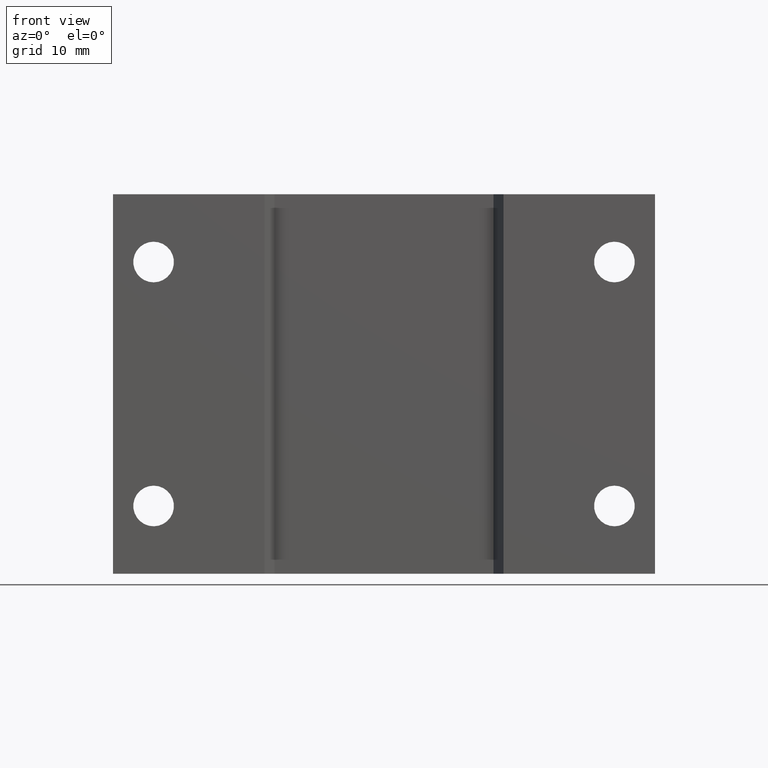
[diagram: clean part render]
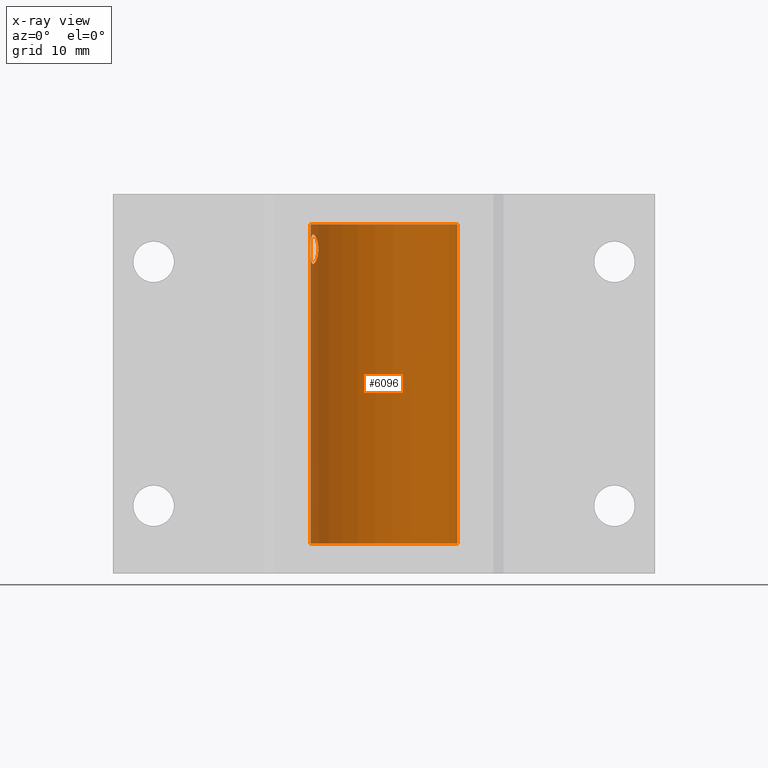
[diagram: x-ray — body ghosted, one internal face saturated and labeled with its STEP entity id]
A machine part, front view, then the same camera in x-ray: the body is ghosted and one INTERNAL B-rep face — a face not visible from any outside direction — is saturated and labeled: STEP entity #6096.
In plain terms, the highlighted cylindrical surface (partial cylindrical patch) has radius 8.5979 mm, axis along (0, 0, -1).
Its self-contained STEP definition (entity closure, byte-faithful):
#90 = DIRECTION ( 'NONE',  ( 0.0000000000000000000, 0.0000000000000000000, -1.000000000000000000 ) ) ;
#118 = CARTESIAN_POINT ( 'NONE',  ( -0.3137966897994204363, -0.1269951249576621033, 0.5671607904430762126 ) ) ;
#158 = CARTESIAN_POINT ( 'NONE',  ( -0.3364748359922478116, -0.03710723243584293507, 0.5763310618168289157 ) ) ;
#339 = VECTOR ( 'NONE', #2376, 39.37007874015748143 ) ;
#374 = EDGE_CURVE ( 'NONE', #7695, #2202, #5979, .T. ) ;
#473 = B_SPLINE_CURVE_WITH_KNOTS ( 'NONE', 3,
 ( #2965, #9072, #8410, #2092, #10689, #5460, #4910, #2053, #7339, #8225, #8107, #3886, #8959, #3776, #10723, #8992, #3816, #10221, #1531, #1590, #10189, #10143, #5036, #7634, #2422, #3252, #2461, #9349 ),
 .UNSPECIFIED., .F., .F.,
 ( 4, 2, 2, 2, 2, 2, 2, 2, 2, 2, 2, 2, 2, 4 ),
 ( 0.0000000000000000000, 0.0003383620096335648712, 0.0006767240192671297424, 0.001015086028900694668, 0.001353448038534260135, 0.002030172057801382397, 0.002706896077068505092, 0.003045258086702066005, 0.003383620096335626486, 0.004060344115602743977, 0.004398706125236307059, 0.004737068134869869274, 0.005075430144503431489, 0.005413792154136993703 ),
 .UNSPECIFIED. ) ;
#587 = FACE_BOUND ( 'NONE', #8984, .T. ) ;
#987 = CARTESIAN_POINT ( 'NONE',  ( -0.3065452609481252866, -0.1436114366438842327, 0.5869464853366791468 ) ) ;
#1054 = CARTESIAN_POINT ( 'NONE',  ( -0.3027005929963763609, -0.1515077588760460614, 0.6212499999999999689 ) ) ;
#1278 = EDGE_CURVE ( 'NONE', #5759, #10516, #473, .T. ) ;
#1479 = ORIENTED_EDGE ( 'NONE', *, *, #374, .T. ) ;
#1531 = CARTESIAN_POINT ( 'NONE',  ( -0.3353363106905219437, -0.04661081344128548132, 0.6756485984646100063 ) ) ;
#1537 = AXIS2_PLACEMENT_3D ( 'NONE', #4288, #90, #6821 ) ;
#1590 = CARTESIAN_POINT ( 'NONE',  ( -0.3364756343767419944, -0.03710238900753182884, 0.6661670416662422989 ) ) ;
#1762 = CARTESIAN_POINT ( 'NONE',  ( -0.3372402150381619279, -0.02928459069803467790, 0.5871465125087985681 ) ) ;
#1797 = CARTESIAN_POINT ( 'NONE',  ( -0.3379002124070352164, -0.02014190793545803798, 0.6212499999999999689 ) ) ;
#1836 = CARTESIAN_POINT ( 'NONE',  ( -0.3036989005335642977, -0.1494992614507808237, 0.6035249457237853443 ) ) ;
#1918 = CIRCLE ( 'NONE', #1537, 0.3385000000000000231 ) ;
#2053 = CARTESIAN_POINT ( 'NONE',  ( -0.3087838090485210407, -0.1387121954973241922, 0.6627299716739766255 ) ) ;
#2066 = EDGE_CURVE ( 'NONE', #10516, #5759, #5290, .T. ) ;
#2092 = CARTESIAN_POINT ( 'NONE',  ( -0.3036896729983820098, -0.1495179427329263733, 0.6388900416892567824 ) ) ;
#2202 = VERTEX_POINT ( 'NONE', #11008 ) ;
#2376 = DIRECTION ( 'NONE',  ( 0.0000000000000000000, 0.0000000000000000000, -1.000000000000000000 ) ) ;
#2422 = CARTESIAN_POINT ( 'NONE',  ( -0.3377608989095670644, -0.02237451853778570782, 0.6389488098115457815 ) ) ;
#2461 = CARTESIAN_POINT ( 'NONE',  ( -0.3379002124070352719, -0.02014190793545807615, 0.6256942211962093214 ) ) ;
#2506 = VERTEX_POINT ( 'NONE', #6568 ) ;
#2623 = CARTESIAN_POINT ( 'NONE',  ( -0.3258129125056840047, -0.09191490690731833613, 0.5532477950630013686 ) ) ;
#2897 = CARTESIAN_POINT ( 'NONE',  ( -0.3379002124070352164, -0.02014190793545803798, 0.6212499999999999689 ) ) ;
#2965 = CARTESIAN_POINT ( 'NONE',  ( -0.3027005929963763609, -0.1515077588760460614, 0.6212499999999999689 ) ) ;
#3252 = CARTESIAN_POINT ( 'NONE',  ( -0.3378740083573442132, -0.02059607701815713982, 0.6302081799949238450 ) ) ;
#3442 = ORIENTED_EDGE ( 'NONE', *, *, #8412, .T. ) ;
#3484 = CARTESIAN_POINT ( 'NONE',  ( -0.3206275007248339803, -0.1086150360222212369, 0.5567295541968679817 ) ) ;
#3561 = CARTESIAN_POINT ( 'NONE',  ( -0.3178892724342091691, -0.1163856981867225776, 0.5601342626191524454 ) ) ;
#3649 = CYLINDRICAL_SURFACE ( 'NONE', #5956, 0.3385000000000000231 ) ;
#3776 = CARTESIAN_POINT ( 'NONE',  ( -0.3281104645743143644, -0.08334001282994327187, 0.6892517245130401760 ) ) ;
#3816 = CARTESIAN_POINT ( 'NONE',  ( -0.3319765317750834055, -0.06626416613863760074, 0.6857760416970534179 ) ) ;
#3886 = CARTESIAN_POINT ( 'NONE',  ( -0.3219752465255824037, -0.1047925757905295019, 0.6874499927164300361 ) ) ;
#3887 = LINE ( 'NONE', #6718, #7799 ) ;
#4159 = VERTEX_POINT ( 'NONE', #5697 ) ;
#4288 = CARTESIAN_POINT ( 'NONE',  ( 0.0000000000000000000, 0.0000000000000000000, -0.7362499999999998490 ) ) ;
#4315 = CARTESIAN_POINT ( 'NONE',  ( 0.0000000000000000000, 0.0000000000000000000, 0.7562499999999998668 ) ) ;
#4346 = CARTESIAN_POINT ( 'NONE',  ( -0.3378039641092739909, -0.02196947009785536406, 0.6033954614804527550 ) ) ;
#4377 = AXIS2_PLACEMENT_3D ( 'NONE', #8456, #11035, #5809 ) ;
#4380 = CARTESIAN_POINT ( 'NONE',  ( -0.3335082724369632934, -0.05806550986053238272, 0.5601763274785988012 ) ) ;
#4417 = CARTESIAN_POINT ( 'NONE',  ( -0.3029039356018448093, -0.1511034650712489158, 0.6123004593758938352 ) ) ;
#4910 = CARTESIAN_POINT ( 'NONE',  ( -0.3066989588144170553, -0.1432629141555968044, 0.6553465142392117526 ) ) ;
#4926 = CARTESIAN_POINT ( 'NONE',  ( 0.3385000000000000231, 4.145429415113791288E-17, 0.7362499999999998490 ) ) ;
#5022 = CIRCLE ( 'NONE', #4377, 0.3385000000000000231 ) ;
#5036 = CARTESIAN_POINT ( 'NONE',  ( -0.3374142289130331873, -0.02714583467731317146, 0.6514077828415072435 ) ) ;
#5176 = CARTESIAN_POINT ( 'NONE',  ( -0.3352586744924127005, -0.04687840435284601481, 0.5671934318726566948 ) ) ;
#5218 = CARTESIAN_POINT ( 'NONE',  ( -0.3374150679482298965, -0.02713491049499654195, 0.5911167812355400120 ) ) ;
#5290 = B_SPLINE_CURVE_WITH_KNOTS ( 'NONE', 3,
 ( #1797, #9569, #4346, #5218, #1762, #5293, #158, #8755, #5176, #7889, #4380, #7809, #10525, #2623, #8683, #10489, #3484, #3561, #10442, #118, #6094, #6131, #987, #6995, #1836, #4417, #8870, #1054 ),
 .UNSPECIFIED., .F., .F.,
 ( 4, 2, 2, 2, 2, 2, 2, 2, 2, 2, 2, 2, 2, 4 ),
 ( 0.005413792154136993703, 0.006090340484572278647, 0.006428614649789924154, 0.006766888815007568794, 0.007105162980225214302, 0.007443437145442859809, 0.008119985475878150824, 0.008458259641095795464, 0.008796533806313440104, 0.009134807971531084744, 0.009473082136748727650, 0.01014963046718402040, 0.01048790463240166851, 0.01082617879761931488 ),
 .UNSPECIFIED. ) ;
#5293 = CARTESIAN_POINT ( 'NONE',  ( -0.3367688699009869779, -0.03428233009801519987, 0.5797462047998209744 ) ) ;
#5432 = ORIENTED_EDGE ( 'NONE', *, *, #2066, .T. ) ;
#5460 = CARTESIAN_POINT ( 'NONE',  ( -0.3057895645510586013, -0.1451827005275945770, 0.6514451150173206084 ) ) ;
#5697 = CARTESIAN_POINT ( 'NONE',  ( -0.3385000000000000231, 0.0000000000000000000, 0.7362499999999998490 ) ) ;
#5759 = VERTEX_POINT ( 'NONE', #7996 ) ;
#5809 = DIRECTION ( 'NONE',  ( -1.000000000000000000, 0.0000000000000000000, 0.0000000000000000000 ) ) ;
#5956 = AXIS2_PLACEMENT_3D ( 'NONE', #4315, #8648, #6958 ) ;
#5979 = LINE ( 'NONE', #7559, #339 ) ;
#6094 = CARTESIAN_POINT ( 'NONE',  ( -0.3124593268015614655, -0.1302359261106149080, 0.5700145399666206592 ) ) ;
#6096 = ADVANCED_FACE ( 'NONE', ( #587, #10435 ), #3649, .F. ) ;
#6131 = CARTESIAN_POINT ( 'NONE',  ( -0.3087321589537104782, -0.1389482401776952203, 0.5793832235445274259 ) ) ;
#6568 = CARTESIAN_POINT ( 'NONE',  ( -0.3385000000000000231, 0.0000000000000000000, -0.7362499999999998490 ) ) ;
#6609 = ORIENTED_EDGE ( 'NONE', *, *, #8279, .T. ) ;
#6718 = CARTESIAN_POINT ( 'NONE',  ( -0.3385000000000000231, 0.0000000000000000000, 0.7562499999999998668 ) ) ;
#6821 = DIRECTION ( 'NONE',  ( -1.000000000000000000, 0.0000000000000000000, 0.0000000000000000000 ) ) ;
#6851 = EDGE_CURVE ( 'NONE', #4159, #2506, #3887, .T. ) ;
#6958 = DIRECTION ( 'NONE',  ( -1.000000000000000000, 0.0000000000000000000, 0.0000000000000000000 ) ) ;
#6995 = CARTESIAN_POINT ( 'NONE',  ( -0.3042936213904426923, -0.1482924135526112186, 0.5992115548251738533 ) ) ;
#7051 = EDGE_LOOP ( 'NONE', ( #6609, #1479, #3442, #9342 ) ) ;
#7339 = CARTESIAN_POINT ( 'NONE',  ( -0.3099661516049605492, -0.1360633107706826495, 0.6662165516021140155 ) ) ;
#7559 = CARTESIAN_POINT ( 'NONE',  ( 0.3385000000000000231, 4.145429415113791288E-17, 0.7562499999999998668 ) ) ;
#7634 = CARTESIAN_POINT ( 'NONE',  ( -0.3376746871790466398, -0.02368678643965127159, 0.6431881429024156605 ) ) ;
#7636 = DIRECTION ( 'NONE',  ( 0.0000000000000000000, 0.0000000000000000000, -1.000000000000000000 ) ) ;
#7695 = VERTEX_POINT ( 'NONE', #4926 ) ;
#7799 = VECTOR ( 'NONE', #7636, 39.37007874015748143 ) ;
#7809 = CARTESIAN_POINT ( 'NONE',  ( -0.3312297560362311155, -0.07026794143266003323, 0.5550304709033569983 ) ) ;
#7889 = CARTESIAN_POINT ( 'NONE',  ( -0.3341528573841388572, -0.05420176675251306420, 0.5622695762377079021 ) ) ;
#7996 = CARTESIAN_POINT ( 'NONE',  ( -0.3027005929963763609, -0.1515077588760460614, 0.6212499999999999689 ) ) ;
#8107 = CARTESIAN_POINT ( 'NONE',  ( -0.3165211501143059269, -0.1202659754308770673, 0.6806608402566125537 ) ) ;
#8225 = CARTESIAN_POINT ( 'NONE',  ( -0.3136961094019466989, -0.1273458270252966207, 0.6755982702887513014 ) ) ;
#8279 = EDGE_CURVE ( 'NONE', #4159, #7695, #5022, .T. ) ;
#8410 = CARTESIAN_POINT ( 'NONE',  ( -0.3029039770498948569, -0.1511033201895567446, 0.6301829514291139578 ) ) ;
#8412 = EDGE_CURVE ( 'NONE', #2202, #2506, #1918, .T. ) ;
#8456 = CARTESIAN_POINT ( 'NONE',  ( 0.0000000000000000000, 0.0000000000000000000, 0.7362499999999998490 ) ) ;
#8648 = DIRECTION ( 'NONE',  ( 0.0000000000000000000, 0.0000000000000000000, -1.000000000000000000 ) ) ;
#8683 = CARTESIAN_POINT ( 'NONE',  ( -0.3245825549208691263, -0.09616357080834872506, 0.5536858483255450158 ) ) ;
#8755 = CARTESIAN_POINT ( 'NONE',  ( -0.3357223726449451440, -0.04339067250811319554, 0.5700595315072812808 ) ) ;
#8870 = CARTESIAN_POINT ( 'NONE',  ( -0.3027005929963765274, -0.1515077588760461447, 0.6167458681085244976 ) ) ;
#8959 = CARTESIAN_POINT ( 'NONE',  ( -0.3246557540823174492, -0.09622905043650592516, 0.6892465355501964375 ) ) ;
#8984 = EDGE_LOOP ( 'NONE', ( #9669, #5432 ) ) ;
#8992 = CARTESIAN_POINT ( 'NONE',  ( -0.3311208813877509205, -0.07042937608955569806, 0.6870643979311639171 ) ) ;
#9072 = CARTESIAN_POINT ( 'NONE',  ( -0.3027005929963764164, -0.1515077588760461447, 0.6257553015428295451 ) ) ;
#9342 = ORIENTED_EDGE ( 'NONE', *, *, #6851, .F. ) ;
#9349 = CARTESIAN_POINT ( 'NONE',  ( -0.3379002124070352164, -0.02014190793545803798, 0.6212499999999999689 ) ) ;
#9569 = CARTESIAN_POINT ( 'NONE',  ( -0.3379002124070352164, -0.02014190793545806921, 0.6123638651953365875 ) ) ;
#9669 = ORIENTED_EDGE ( 'NONE', *, *, #1278, .T. ) ;
#10143 = CARTESIAN_POINT ( 'NONE',  ( -0.3372380893456380924, -0.02930786523545041503, 0.6553898679684070361 ) ) ;
#10189 = CARTESIAN_POINT ( 'NONE',  ( -0.3367692331778345816, -0.03427773993379910206, 0.6627450740313073352 ) ) ;
#10221 = CARTESIAN_POINT ( 'NONE',  ( -0.3342565269453368626, -0.05406712169414060881, 0.6806475317837566985 ) ) ;
#10435 = FACE_OUTER_BOUND ( 'NONE', #7051, .T. ) ;
#10442 = CARTESIAN_POINT ( 'NONE',  ( -0.3165152519356058680, -0.1200592336483359834, 0.5622197582520085390 ) ) ;
#10489 = CARTESIAN_POINT ( 'NONE',  ( -0.3219974974501224052, -0.1044934397243660329, 0.5554152527362125058 ) ) ;
#10516 = VERTEX_POINT ( 'NONE', #2897 ) ;
#10525 = CARTESIAN_POINT ( 'NONE',  ( -0.3292974177110892242, -0.07890549383711208120, 0.5532544346641302679 ) ) ;
#10689 = CARTESIAN_POINT ( 'NONE',  ( -0.3042816981346555538, -0.1483169663292155938, 0.6432153968974626546 ) ) ;
#10723 = CARTESIAN_POINT ( 'NONE',  ( -0.3291929874791395538, -0.07895132742344601606, 0.6888064577988928239 ) ) ;
#11008 = CARTESIAN_POINT ( 'NONE',  ( 0.3385000000000000231, 4.145429415113791288E-17, -0.7362499999999998490 ) ) ;
#11035 = DIRECTION ( 'NONE',  ( -0.0000000000000000000, -0.0000000000000000000, 1.000000000000000000 ) ) ;